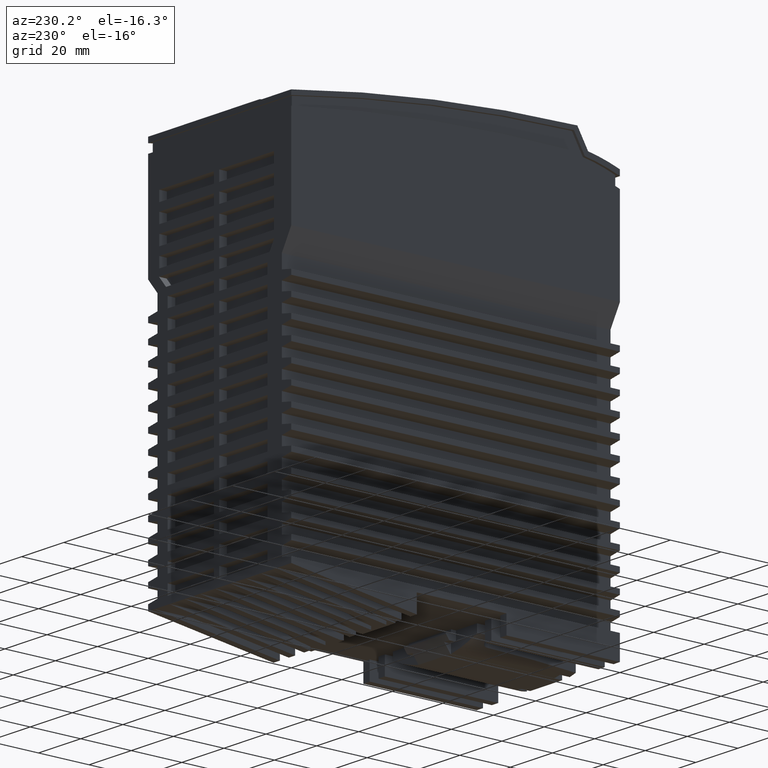
[diagram: clean part render]
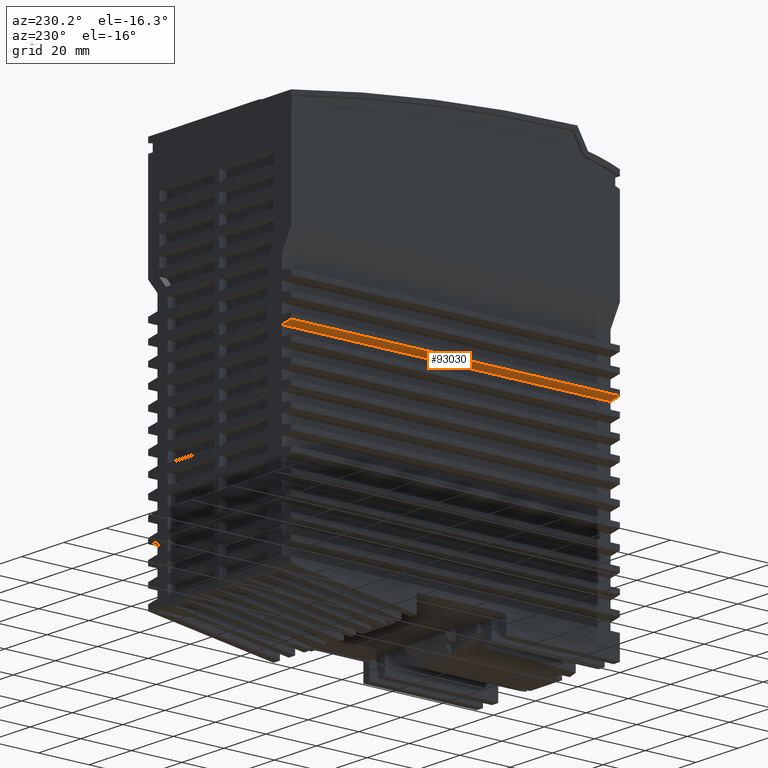
[diagram: same view with one face highlighted and labeled with its STEP entity id]
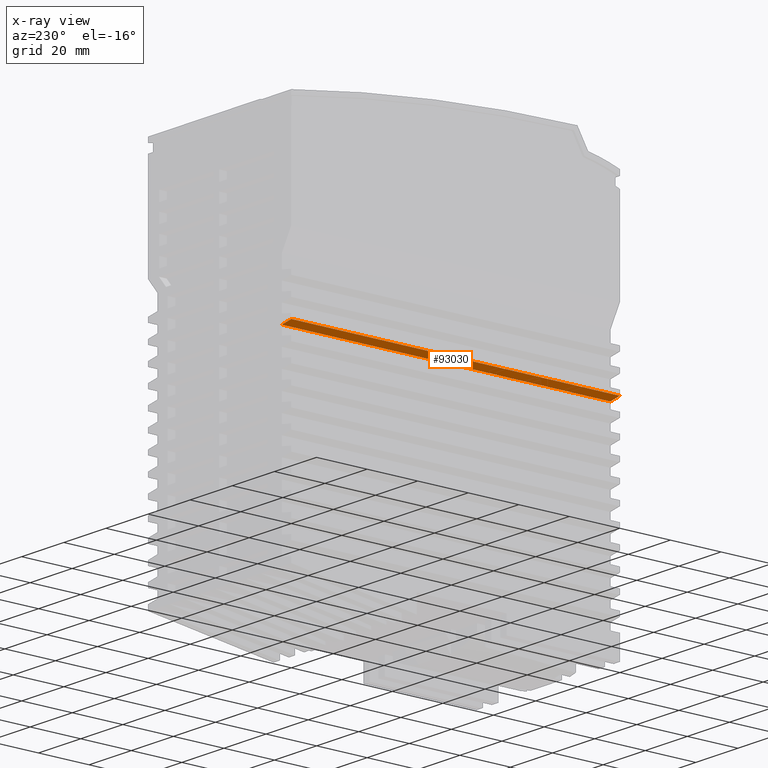
[diagram: x-ray of the same camera — body ghosted, the highlighted face saturated]
A machine part, auxiliary view. The second image highlights one B-rep face of the part: STEP entity #93030.
The next image is the same camera in x-ray: the body ghosted, the highlighted face saturated — about 0% of this face is hidden behind the body in this view.
In plain terms, the highlighted planar face has unit normal (0.1736, 0, 0.9848).
Its self-contained STEP definition (entity closure, byte-faithful):
#13740=CARTESIAN_POINT('',(77.2800000000002,0.,4.5));
#13750=VERTEX_POINT('',#13740);
#13800=CARTESIAN_POINT('',(77.2800000000002,64.9999998943551,4.5));
#13810=DIRECTION('',(0.,1.,0.));
#13820=VECTOR('',#13810,1.);
#13830=LINE('',#13800,#13820);
#13840=CARTESIAN_POINT('',(77.2800000000002,130.,4.5));
#13850=VERTEX_POINT('',#13840);
#13860=EDGE_CURVE('',#13750,#13850,#13830,.T.);
#65340=CARTESIAN_POINT('',(76.4865285868123,0.,0.));
#65350=VERTEX_POINT('',#65340);
#65380=CARTESIAN_POINT('',(77.2800000000002,0.,4.5));
#65390=DIRECTION('',(0.173648177666902,0.,0.984807753012213));
#65400=VECTOR('',#65390,1.);
#65410=LINE('',#65380,#65400);
#65420=EDGE_CURVE('',#65350,#13750,#65410,.T.);
#79850=CARTESIAN_POINT('',(77.2800000000002,130.,4.5));
#79860=DIRECTION('',(0.173648177666902,0.,0.984807753012213));
#79870=VECTOR('',#79860,1.);
#79880=LINE('',#79850,#79870);
#79890=CARTESIAN_POINT('',(76.4865285868123,130.,0.));
#79900=VERTEX_POINT('',#79890);
#79910=EDGE_CURVE('',#79900,#13850,#79880,.T.);
#92800=CARTESIAN_POINT('',(76.4865285868123,-13.0000024000001,0.));
#92810=DIRECTION('',(0.,1.,0.));
#92820=VECTOR('',#92810,1.);
#92830=LINE('',#92800,#92820);
#92840=EDGE_CURVE('',#65350,#79900,#92830,.T.);
#92920=CARTESIAN_POINT('',(76.4865285868123,-13.0000024000001,0.));
#92930=DIRECTION('',(0.984807753012213,0.,-0.173648177666902));
#92940=DIRECTION('',(0.173648177666902,0.,0.984807753012213));
#92950=AXIS2_PLACEMENT_3D('',#92920,#92930,#92940);
#92960=PLANE('',#92950);
#92970=ORIENTED_EDGE('',*,*,#65420,.T.);
#92980=ORIENTED_EDGE('',*,*,#92840,.F.);
#92990=ORIENTED_EDGE('',*,*,#79910,.F.);
#93000=ORIENTED_EDGE('',*,*,#13860,.T.);
#93010=EDGE_LOOP('',(#93000,#92990,#92980,#92970));
#93020=FACE_OUTER_BOUND('',#93010,.T.);
#93030=ADVANCED_FACE('',(#93020),#92960,.F.);